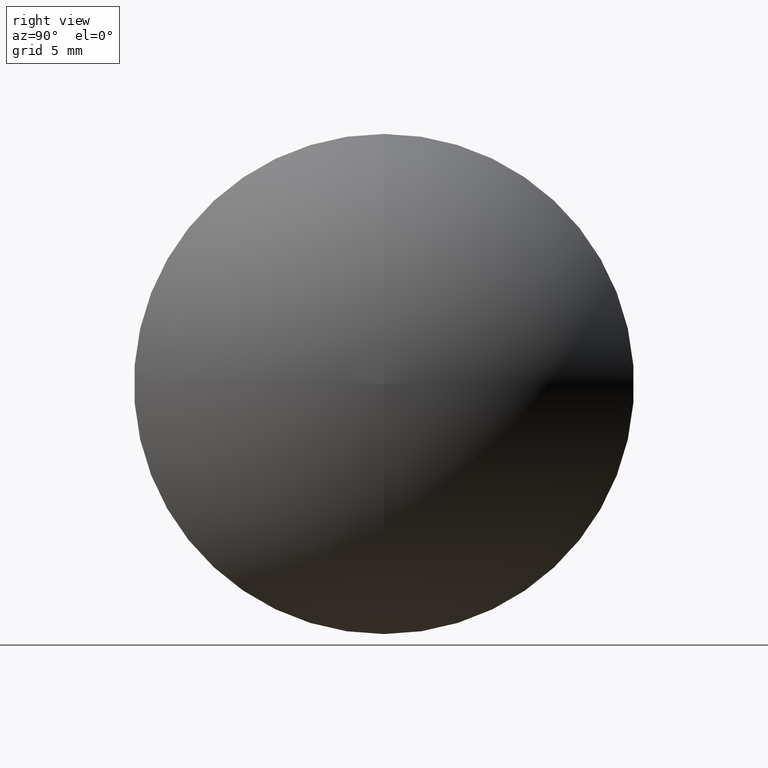
[diagram: clean part render]
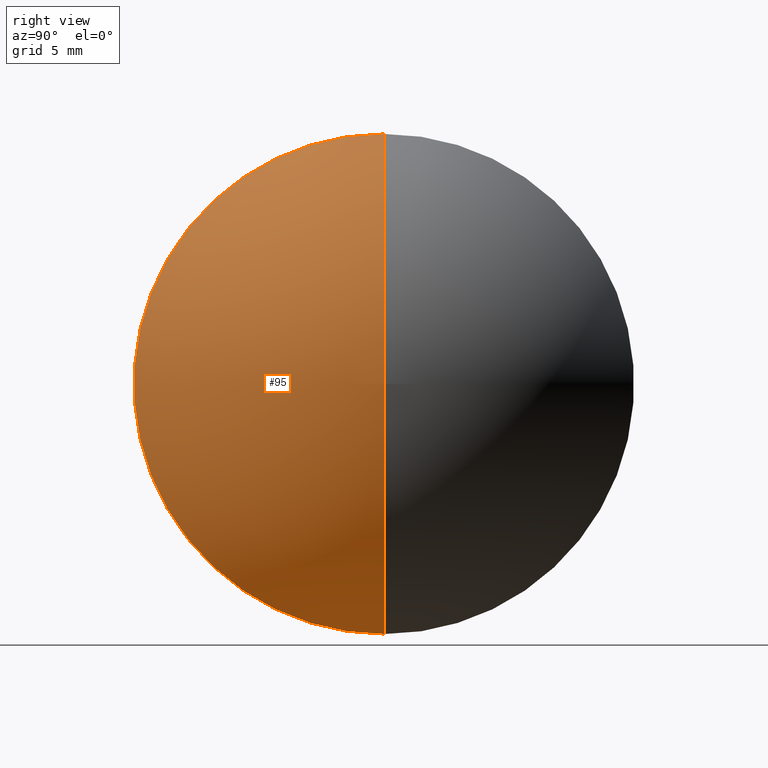
[diagram: same view with one face highlighted and labeled with its STEP entity id]
A machine part, right view. The second image highlights one B-rep face of the part: STEP entity #95.
In plain terms, the highlighted toroidal blend (fillet) surface has major radius 0.0178 mm and minor (blend) radius 13.83 mm.
Its self-contained STEP definition (entity closure, byte-faithful):
#3 = CARTESIAN_POINT ( 'NONE',  ( 492.0819735120367100, 124.7029078037479600, 0.0000000000000000000 ) ) ;
#10 = ORIENTED_EDGE ( 'NONE', *, *, #88, .T. ) ;
#24 = CIRCLE ( 'NONE', #27, 12.50000000000001100 ) ;
#27 = AXIS2_PLACEMENT_3D ( 'NONE', #3, #51, #142 ) ;
#31 = TOROIDAL_SURFACE ( 'NONE', #53, 0.01775236966823634500, 13.82996794970070600 ) ;
#35 = DIRECTION ( 'NONE',  ( 0.0000000000000000000, 0.0000000000000000000, -1.000000000000000000 ) ) ;
#41 = FACE_OUTER_BOUND ( 'NONE', #107, .T. ) ;
#44 = VERTEX_POINT ( 'NONE', #68 ) ;
#45 = DIRECTION ( 'NONE',  ( -1.000000000000000000, -0.0000000000000000000, -0.0000000000000000000 ) ) ;
#48 = EDGE_CURVE ( 'NONE', #76, #44, #65, .T. ) ;
#51 = DIRECTION ( 'NONE',  ( -1.000000000000000000, -0.0000000000000000000, -0.0000000000000000000 ) ) ;
#53 = AXIS2_PLACEMENT_3D ( 'NONE', #109, #45, #163 ) ;
#65 = CIRCLE ( 'NONE', #106, 13.82996794970070600 ) ;
#68 = CARTESIAN_POINT ( 'NONE',  ( 492.0819735120367100, 124.7029078037479600, -12.50000000000000900 ) ) ;
#70 = DIRECTION ( 'NONE',  ( -0.0000000000000000000, 1.000000000000000000, 1.224646799147353200E-016 ) ) ;
#72 = ORIENTED_EDGE ( 'NONE', *, *, #153, .F. ) ;
#76 = VERTEX_POINT ( 'NONE', #123 ) ;
#88 = EDGE_CURVE ( 'NONE', #76, #101, #165, .T. ) ;
#91 = DIRECTION ( 'NONE',  ( 0.0000000000000000000, 0.0000000000000000000, 1.000000000000000000 ) ) ;
#92 = CARTESIAN_POINT ( 'NONE',  ( 492.0819735120367100, 124.7029078037479600, 12.50000000000000900 ) ) ;
#95 = ADVANCED_FACE ( 'NONE', ( #41 ), #31, .T. ) ;
#101 = VERTEX_POINT ( 'NONE', #92 ) ;
#106 = AXIS2_PLACEMENT_3D ( 'NONE', #125, #70, #91 ) ;
#107 = EDGE_LOOP ( 'NONE', ( #146, #10, #72 ) ) ;
#109 = CARTESIAN_POINT ( 'NONE',  ( 486.1270169559545600, 124.7029078037479600, 0.0000000000000000000 ) ) ;
#123 = CARTESIAN_POINT ( 'NONE',  ( 499.9569735120367100, 124.7029078037479600, 0.0000000000000000000 ) ) ;
#124 = DIRECTION ( 'NONE',  ( 0.0000000000000000000, -1.000000000000000000, 0.0000000000000000000 ) ) ;
#125 = CARTESIAN_POINT ( 'NONE',  ( 486.1270169559545600, 124.7029078037479600, -0.01775236966823634500 ) ) ;
#133 = AXIS2_PLACEMENT_3D ( 'NONE', #140, #124, #35 ) ;
#140 = CARTESIAN_POINT ( 'NONE',  ( 486.1270169559545600, 124.7029078037479600, 0.01775236966823634500 ) ) ;
#142 = DIRECTION ( 'NONE',  ( 0.0000000000000000000, 0.0000000000000000000, 1.000000000000000000 ) ) ;
#146 = ORIENTED_EDGE ( 'NONE', *, *, #48, .F. ) ;
#153 = EDGE_CURVE ( 'NONE', #44, #101, #24, .T. ) ;
#163 = DIRECTION ( 'NONE',  ( 0.0000000000000000000, 0.0000000000000000000, 1.000000000000000000 ) ) ;
#165 = CIRCLE ( 'NONE', #133, 13.82996794970070600 ) ;